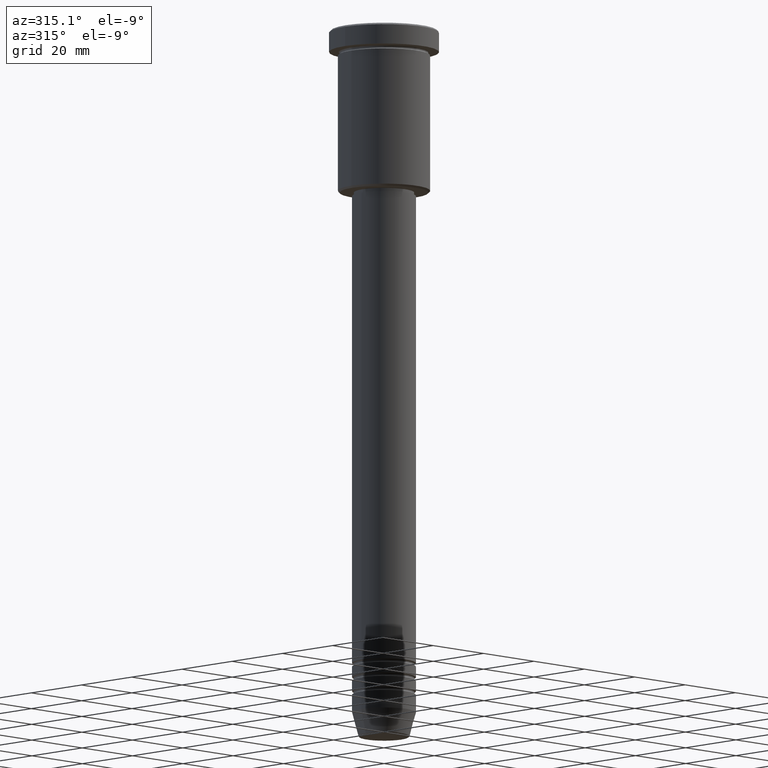
[diagram: clean part render]
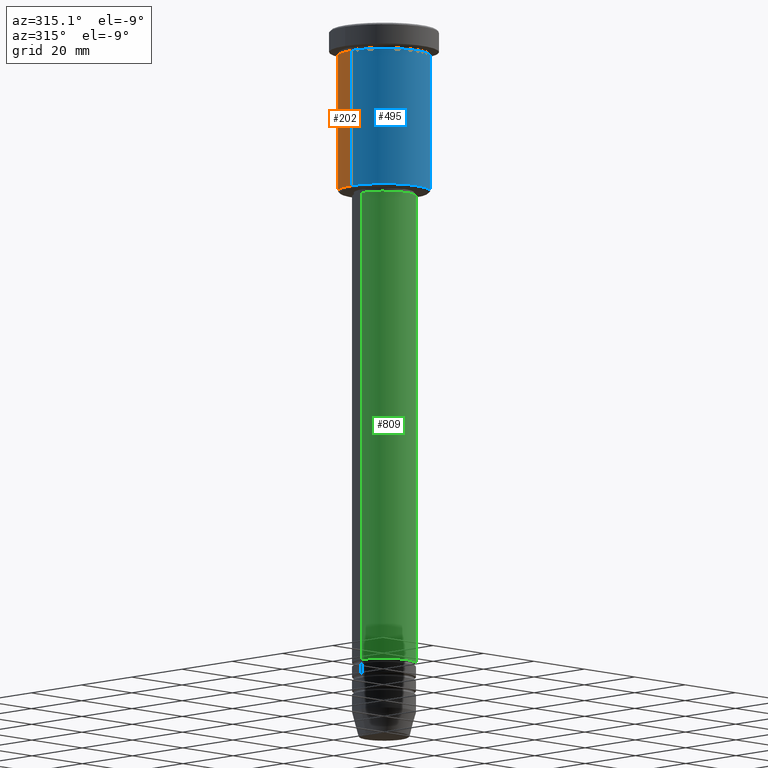
[diagram: same view with three faces highlighted in distinct colors, each labeled with its STEP entity id]
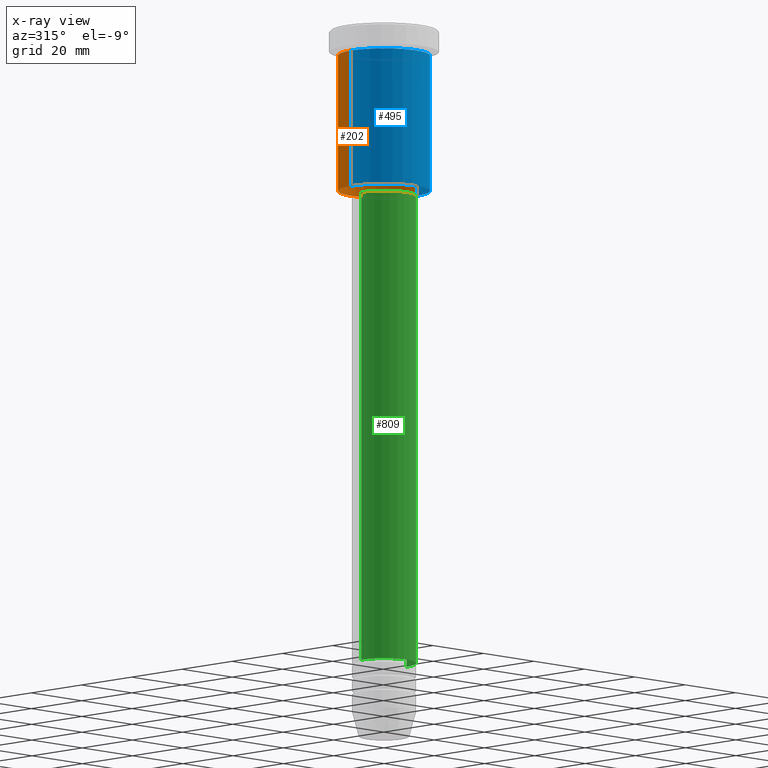
[diagram: x-ray of the same camera — body ghosted, the three highlighted faces saturated]
A machine part, auxiliary view with three faces highlighted in distinct colors.
The next image is the same camera in x-ray (body ghosted, the three faces saturated) — at least one of them is partly hidden behind the body in this view.
Their STEP definitions:

[orange] entity #202 — the highlighted cylindrical surface (partial cylindrical patch) has radius 13 mm, axis along (-0, -0, 1).
#9 = AXIS2_PLACEMENT_3D ( 'NONE', #1119, #133, #869 ) ;
#35 = DIRECTION ( 'NONE',  ( -1.000000000000000000, 0.000000000000000000, 0.000000000000000000 ) ) ;
#54 = EDGE_CURVE ( 'NONE', #934, #455, #590, .T. ) ;
#118 = ORIENTED_EDGE ( 'NONE', *, *, #933, .F. ) ;
#133 = DIRECTION ( 'NONE',  ( -0.000000000000000000, -0.000000000000000000, 1.000000000000000000 ) ) ;
#182 = CARTESIAN_POINT ( 'NONE',  ( -13.00000000000000178, 1.592040838891559293E-15, -45.50000000000003553 ) ) ;
#202 = ADVANCED_FACE ( 'NONE', ( #330 ), #692, .T. ) ;
#233 = AXIS2_PLACEMENT_3D ( 'NONE', #259, #346, #1061 ) ;
#259 = CARTESIAN_POINT ( 'NONE',  ( 0.000000000000000000, 0.000000000000000000, 0.000000000000000000 ) ) ;
#295 = CIRCLE ( 'NONE', #9, 13.00000000000000178 ) ;
#321 = CARTESIAN_POINT ( 'NONE',  ( 0.000000000000000000, 0.000000000000000000, -45.50000000000003553 ) ) ;
#326 = DIRECTION ( 'NONE',  ( -0.000000000000000000, -0.000000000000000000, 1.000000000000000000 ) ) ;
#330 = FACE_OUTER_BOUND ( 'NONE', #428, .T. ) ;
#346 = DIRECTION ( 'NONE',  ( -0.000000000000000000, -0.000000000000000000, 1.000000000000000000 ) ) ;
#347 = AXIS2_PLACEMENT_3D ( 'NONE', #321, #595, #35 ) ;
#349 = VERTEX_POINT ( 'NONE', #182 ) ;
#412 = EDGE_CURVE ( 'NONE', #349, #848, #839, .T. ) ;
#428 = EDGE_LOOP ( 'NONE', ( #932, #793, #118, #550 ) ) ;
#455 = VERTEX_POINT ( 'NONE', #681 ) ;
#550 = ORIENTED_EDGE ( 'NONE', *, *, #54, .F. ) ;
#568 = CARTESIAN_POINT ( 'NONE',  ( -13.00000000000000178, 1.592040838891559293E-15, 0.000000000000000000 ) ) ;
#589 = CARTESIAN_POINT ( 'NONE',  ( 13.00000000000000178, 0.000000000000000000, -45.50000000000003553 ) ) ;
#590 = LINE ( 'NONE', #759, #1069 ) ;
#595 = DIRECTION ( 'NONE',  ( -0.000000000000000000, -0.000000000000000000, 1.000000000000000000 ) ) ;
#681 = CARTESIAN_POINT ( 'NONE',  ( 13.00000000000000178, 0.000000000000000000, -6.999999999999995559 ) ) ;
#691 = CIRCLE ( 'NONE', #347, 13.00000000000000178 ) ;
#692 = CYLINDRICAL_SURFACE ( 'NONE', #233, 13.00000000000000178 ) ;
#759 = CARTESIAN_POINT ( 'NONE',  ( 13.00000000000000178, 0.000000000000000000, 0.000000000000000000 ) ) ;
#793 = ORIENTED_EDGE ( 'NONE', *, *, #412, .T. ) ;
#839 = LINE ( 'NONE', #568, #1050 ) ;
#848 = VERTEX_POINT ( 'NONE', #1001 ) ;
#869 = DIRECTION ( 'NONE',  ( 1.000000000000000000, 0.000000000000000000, 0.000000000000000000 ) ) ;
#931 = DIRECTION ( 'NONE',  ( -0.000000000000000000, -0.000000000000000000, 1.000000000000000000 ) ) ;
#932 = ORIENTED_EDGE ( 'NONE', *, *, #1030, .T. ) ;
#933 = EDGE_CURVE ( 'NONE', #455, #848, #295, .T. ) ;
#934 = VERTEX_POINT ( 'NONE', #589 ) ;
#1001 = CARTESIAN_POINT ( 'NONE',  ( -13.00000000000000178, 1.592040838891559293E-15, -6.999999999999995559 ) ) ;
#1030 = EDGE_CURVE ( 'NONE', #934, #349, #691, .T. ) ;
#1050 = VECTOR ( 'NONE', #931, 1000.000000000000000 ) ;
#1061 = DIRECTION ( 'NONE',  ( 1.000000000000000000, 0.000000000000000000, 0.000000000000000000 ) ) ;
#1069 = VECTOR ( 'NONE', #326, 1000.000000000000000 ) ;
#1119 = CARTESIAN_POINT ( 'NONE',  ( 0.000000000000000000, 0.000000000000000000, -6.999999999999995559 ) ) ;

[blue] entity #495 — the highlighted cylindrical surface (partial cylindrical patch) has radius 13 mm, axis along (-0, -0, 1).
#32 = FACE_OUTER_BOUND ( 'NONE', #198, .T. ) ;
#47 = AXIS2_PLACEMENT_3D ( 'NONE', #502, #1142, #772 ) ;
#54 = EDGE_CURVE ( 'NONE', #934, #455, #590, .T. ) ;
#73 = EDGE_CURVE ( 'NONE', #848, #455, #610, .T. ) ;
#112 = DIRECTION ( 'NONE',  ( -0.000000000000000000, -0.000000000000000000, 1.000000000000000000 ) ) ;
#182 = CARTESIAN_POINT ( 'NONE',  ( -13.00000000000000178, 1.592040838891559293E-15, -45.50000000000003553 ) ) ;
#198 = EDGE_LOOP ( 'NONE', ( #284, #386, #393, #530 ) ) ;
#208 = CARTESIAN_POINT ( 'NONE',  ( 0.000000000000000000, 0.000000000000000000, 0.000000000000000000 ) ) ;
#284 = ORIENTED_EDGE ( 'NONE', *, *, #412, .F. ) ;
#326 = DIRECTION ( 'NONE',  ( -0.000000000000000000, -0.000000000000000000, 1.000000000000000000 ) ) ;
#349 = VERTEX_POINT ( 'NONE', #182 ) ;
#386 = ORIENTED_EDGE ( 'NONE', *, *, #486, .T. ) ;
#393 = ORIENTED_EDGE ( 'NONE', *, *, #54, .T. ) ;
#412 = EDGE_CURVE ( 'NONE', #349, #848, #839, .T. ) ;
#455 = VERTEX_POINT ( 'NONE', #681 ) ;
#478 = CARTESIAN_POINT ( 'NONE',  ( 0.000000000000000000, 0.000000000000000000, -45.50000000000003553 ) ) ;
#486 = EDGE_CURVE ( 'NONE', #349, #934, #1034, .T. ) ;
#495 = ADVANCED_FACE ( 'NONE', ( #32 ), #755, .T. ) ;
#502 = CARTESIAN_POINT ( 'NONE',  ( 0.000000000000000000, 0.000000000000000000, -6.999999999999995559 ) ) ;
#530 = ORIENTED_EDGE ( 'NONE', *, *, #73, .F. ) ;
#568 = CARTESIAN_POINT ( 'NONE',  ( -13.00000000000000178, 1.592040838891559293E-15, 0.000000000000000000 ) ) ;
#589 = CARTESIAN_POINT ( 'NONE',  ( 13.00000000000000178, 0.000000000000000000, -45.50000000000003553 ) ) ;
#590 = LINE ( 'NONE', #759, #1069 ) ;
#610 = CIRCLE ( 'NONE', #47, 13.00000000000000178 ) ;
#651 = AXIS2_PLACEMENT_3D ( 'NONE', #208, #667, #940 ) ;
#667 = DIRECTION ( 'NONE',  ( -0.000000000000000000, -0.000000000000000000, 1.000000000000000000 ) ) ;
#681 = CARTESIAN_POINT ( 'NONE',  ( 13.00000000000000178, 0.000000000000000000, -6.999999999999995559 ) ) ;
#755 = CYLINDRICAL_SURFACE ( 'NONE', #651, 13.00000000000000178 ) ;
#759 = CARTESIAN_POINT ( 'NONE',  ( 13.00000000000000178, 0.000000000000000000, 0.000000000000000000 ) ) ;
#772 = DIRECTION ( 'NONE',  ( 1.000000000000000000, 0.000000000000000000, 0.000000000000000000 ) ) ;
#839 = LINE ( 'NONE', #568, #1050 ) ;
#848 = VERTEX_POINT ( 'NONE', #1001 ) ;
#931 = DIRECTION ( 'NONE',  ( -0.000000000000000000, -0.000000000000000000, 1.000000000000000000 ) ) ;
#934 = VERTEX_POINT ( 'NONE', #589 ) ;
#940 = DIRECTION ( 'NONE',  ( 1.000000000000000000, 0.000000000000000000, 0.000000000000000000 ) ) ;
#1001 = CARTESIAN_POINT ( 'NONE',  ( -13.00000000000000178, 1.592040838891559293E-15, -6.999999999999995559 ) ) ;
#1034 = CIRCLE ( 'NONE', #1109, 13.00000000000000178 ) ;
#1041 = DIRECTION ( 'NONE',  ( -1.000000000000000000, 0.000000000000000000, 0.000000000000000000 ) ) ;
#1050 = VECTOR ( 'NONE', #931, 1000.000000000000000 ) ;
#1069 = VECTOR ( 'NONE', #326, 1000.000000000000000 ) ;
#1109 = AXIS2_PLACEMENT_3D ( 'NONE', #478, #112, #1041 ) ;
#1142 = DIRECTION ( 'NONE',  ( -0.000000000000000000, -0.000000000000000000, 1.000000000000000000 ) ) ;

[green] entity #809 — the highlighted cylindrical surface (edge-blend (fillet) strip) has radius 9 mm, axis along (-0, -0, 1).
#10 = DIRECTION ( 'NONE',  ( -0.000000000000000000, -0.000000000000000000, 1.000000000000000000 ) ) ;
#14 = EDGE_LOOP ( 'NONE', ( #902, #121, #255, #538 ) ) ;
#26 = VERTEX_POINT ( 'NONE', #576 ) ;
#59 = CIRCLE ( 'NONE', #972, 9.000000000000001776 ) ;
#106 = DIRECTION ( 'NONE',  ( 1.000000000000000000, 0.000000000000000000, 0.000000000000000000 ) ) ;
#121 = ORIENTED_EDGE ( 'NONE', *, *, #357, .T. ) ;
#169 = VERTEX_POINT ( 'NONE', #970 ) ;
#176 = AXIS2_PLACEMENT_3D ( 'NONE', #247, #262, #418 ) ;
#177 = CARTESIAN_POINT ( 'NONE',  ( 0.000000000000000000, 0.000000000000000000, -179.9999999999999147 ) ) ;
#193 = CYLINDRICAL_SURFACE ( 'NONE', #1166, 9.000000000000000000 ) ;
#196 = DIRECTION ( 'NONE',  ( -0.000000000000000000, -0.000000000000000000, 1.000000000000000000 ) ) ;
#217 = EDGE_CURVE ( 'NONE', #169, #847, #415, .T. ) ;
#221 = CIRCLE ( 'NONE', #176, 8.999999999999998224 ) ;
#241 = CARTESIAN_POINT ( 'NONE',  ( 9.000000000000000000, 0.000000000000000000, 0.000000000000000000 ) ) ;
#247 = CARTESIAN_POINT ( 'NONE',  ( 0.000000000000000000, 0.000000000000000000, -47.00000000000003553 ) ) ;
#255 = ORIENTED_EDGE ( 'NONE', *, *, #217, .T. ) ;
#260 = DIRECTION ( 'NONE',  ( -0.000000000000000000, -0.000000000000000000, 1.000000000000000000 ) ) ;
#262 = DIRECTION ( 'NONE',  ( -0.000000000000000000, -0.000000000000000000, 1.000000000000000000 ) ) ;
#283 = CARTESIAN_POINT ( 'NONE',  ( -9.000000000000000000, 1.102182119232617714E-15, 0.000000000000000000 ) ) ;
#300 = CARTESIAN_POINT ( 'NONE',  ( 0.000000000000000000, 0.000000000000000000, 0.000000000000000000 ) ) ;
#357 = EDGE_CURVE ( 'NONE', #26, #169, #59, .T. ) ;
#389 = EDGE_CURVE ( 'NONE', #26, #738, #1086, .T. ) ;
#415 = LINE ( 'NONE', #241, #843 ) ;
#418 = DIRECTION ( 'NONE',  ( 1.000000000000000000, 0.000000000000000000, 0.000000000000000000 ) ) ;
#538 = ORIENTED_EDGE ( 'NONE', *, *, #1146, .F. ) ;
#558 = DIRECTION ( 'NONE',  ( 1.000000000000000000, 0.000000000000000000, 0.000000000000000000 ) ) ;
#576 = CARTESIAN_POINT ( 'NONE',  ( -9.000000000000001776, 1.102182119232617911E-15, -179.9999999999999147 ) ) ;
#639 = CARTESIAN_POINT ( 'NONE',  ( 8.999999999999998224, 0.000000000000000000, -47.00000000000003553 ) ) ;
#723 = VECTOR ( 'NONE', #260, 1000.000000000000000 ) ;
#738 = VERTEX_POINT ( 'NONE', #1099 ) ;
#788 = DIRECTION ( 'NONE',  ( -0.000000000000000000, -0.000000000000000000, 1.000000000000000000 ) ) ;
#809 = ADVANCED_FACE ( 'NONE', ( #904 ), #193, .T. ) ;
#843 = VECTOR ( 'NONE', #788, 1000.000000000000000 ) ;
#847 = VERTEX_POINT ( 'NONE', #639 ) ;
#902 = ORIENTED_EDGE ( 'NONE', *, *, #389, .F. ) ;
#904 = FACE_OUTER_BOUND ( 'NONE', #14, .T. ) ;
#970 = CARTESIAN_POINT ( 'NONE',  ( 9.000000000000001776, 0.000000000000000000, -179.9999999999999147 ) ) ;
#972 = AXIS2_PLACEMENT_3D ( 'NONE', #177, #196, #558 ) ;
#1086 = LINE ( 'NONE', #283, #723 ) ;
#1099 = CARTESIAN_POINT ( 'NONE',  ( -8.999999999999998224, 1.102182119232617714E-15, -47.00000000000003553 ) ) ;
#1146 = EDGE_CURVE ( 'NONE', #738, #847, #221, .T. ) ;
#1166 = AXIS2_PLACEMENT_3D ( 'NONE', #300, #10, #106 ) ;